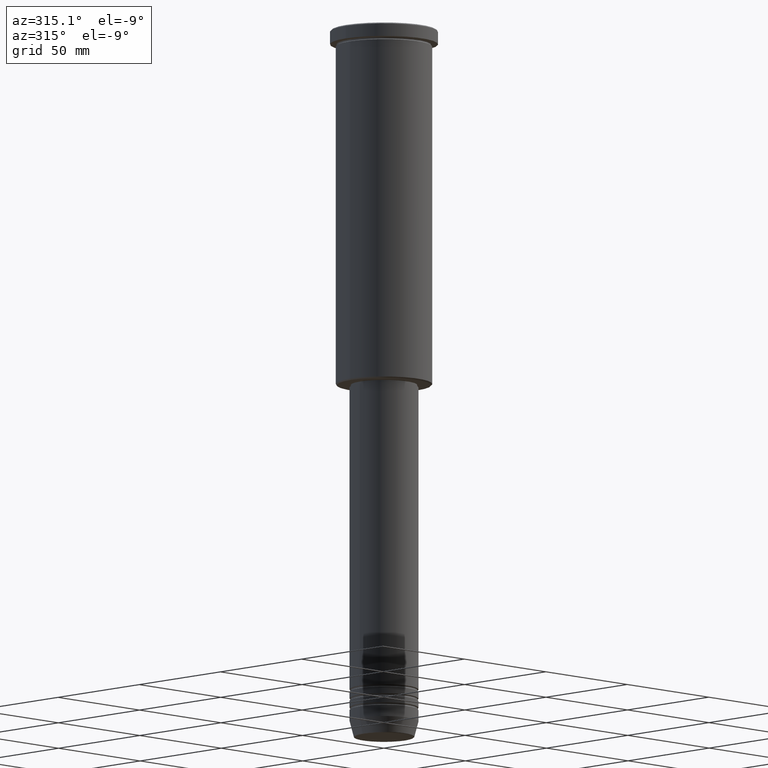
[diagram: clean part render]
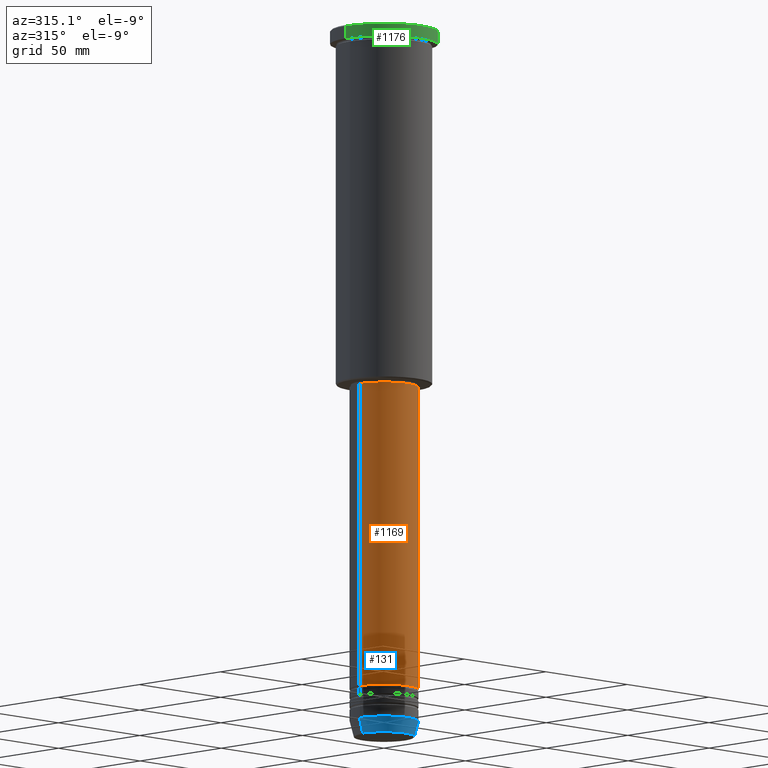
[diagram: same view with three faces highlighted in distinct colors, each labeled with its STEP entity id]
A machine part, auxiliary view with three faces highlighted in distinct colors.
Their STEP definitions:

[orange] entity #1169 — the highlighted cylindrical surface (edge-blend (fillet) strip) has radius 15 mm, axis along (-0, -0, 1).
#53 = EDGE_CURVE ( 'NONE', #565, #350, #1059, .T. ) ;
#72 = VECTOR ( 'NONE', #538, 1000.000000000000000 ) ;
#126 = AXIS2_PLACEMENT_3D ( 'NONE', #443, #817, #698 ) ;
#172 = CARTESIAN_POINT ( 'NONE',  ( 15.00000000000000000, 0.000000000000000000, -156.9999999999999147 ) ) ;
#208 = DIRECTION ( 'NONE',  ( -0.000000000000000000, -0.000000000000000000, 1.000000000000000000 ) ) ;
#225 = ORIENTED_EDGE ( 'NONE', *, *, #695, .F. ) ;
#231 = EDGE_CURVE ( 'NONE', #565, #862, #285, .T. ) ;
#243 = VECTOR ( 'NONE', #739, 1000.000000000000000 ) ;
#285 = LINE ( 'NONE', #368, #243 ) ;
#308 = CARTESIAN_POINT ( 'NONE',  ( -15.00000000000000000, 1.836970198721029589E-15, -289.9999999999999432 ) ) ;
#343 = LINE ( 'NONE', #909, #72 ) ;
#350 = VERTEX_POINT ( 'NONE', #376 ) ;
#368 = CARTESIAN_POINT ( 'NONE',  ( -15.00000000000000000, 1.836970198721029589E-15, 0.000000000000000000 ) ) ;
#374 = CARTESIAN_POINT ( 'NONE',  ( 0.000000000000000000, 0.000000000000000000, -156.9999999999999147 ) ) ;
#376 = CARTESIAN_POINT ( 'NONE',  ( 15.00000000000000000, 0.000000000000000000, -289.9999999999999432 ) ) ;
#443 = CARTESIAN_POINT ( 'NONE',  ( 0.000000000000000000, 0.000000000000000000, -289.9999999999999432 ) ) ;
#532 = AXIS2_PLACEMENT_3D ( 'NONE', #374, #208, #1116 ) ;
#538 = DIRECTION ( 'NONE',  ( -0.000000000000000000, -0.000000000000000000, 1.000000000000000000 ) ) ;
#565 = VERTEX_POINT ( 'NONE', #308 ) ;
#594 = AXIS2_PLACEMENT_3D ( 'NONE', #1075, #1172, #616 ) ;
#616 = DIRECTION ( 'NONE',  ( 1.000000000000000000, 0.000000000000000000, 0.000000000000000000 ) ) ;
#628 = ORIENTED_EDGE ( 'NONE', *, *, #53, .T. ) ;
#695 = EDGE_CURVE ( 'NONE', #862, #871, #992, .T. ) ;
#698 = DIRECTION ( 'NONE',  ( 1.000000000000000000, 0.000000000000000000, 0.000000000000000000 ) ) ;
#739 = DIRECTION ( 'NONE',  ( -0.000000000000000000, -0.000000000000000000, 1.000000000000000000 ) ) ;
#758 = EDGE_LOOP ( 'NONE', ( #936, #628, #966, #225 ) ) ;
#817 = DIRECTION ( 'NONE',  ( -0.000000000000000000, -0.000000000000000000, 1.000000000000000000 ) ) ;
#847 = CARTESIAN_POINT ( 'NONE',  ( -15.00000000000000000, 1.836970198721029589E-15, -156.9999999999999147 ) ) ;
#862 = VERTEX_POINT ( 'NONE', #847 ) ;
#871 = VERTEX_POINT ( 'NONE', #172 ) ;
#909 = CARTESIAN_POINT ( 'NONE',  ( 15.00000000000000000, 0.000000000000000000, 0.000000000000000000 ) ) ;
#936 = ORIENTED_EDGE ( 'NONE', *, *, #231, .F. ) ;
#966 = ORIENTED_EDGE ( 'NONE', *, *, #985, .T. ) ;
#985 = EDGE_CURVE ( 'NONE', #350, #871, #343, .T. ) ;
#987 = CYLINDRICAL_SURFACE ( 'NONE', #594, 15.00000000000000000 ) ;
#992 = CIRCLE ( 'NONE', #532, 15.00000000000000000 ) ;
#1059 = CIRCLE ( 'NONE', #126, 15.00000000000000000 ) ;
#1075 = CARTESIAN_POINT ( 'NONE',  ( 0.000000000000000000, 0.000000000000000000, 0.000000000000000000 ) ) ;
#1116 = DIRECTION ( 'NONE',  ( 1.000000000000000000, 0.000000000000000000, 0.000000000000000000 ) ) ;
#1164 = FACE_OUTER_BOUND ( 'NONE', #758, .T. ) ;
#1169 = ADVANCED_FACE ( 'NONE', ( #1164 ), #987, .T. ) ;
#1172 = DIRECTION ( 'NONE',  ( -0.000000000000000000, -0.000000000000000000, 1.000000000000000000 ) ) ;

[blue] entity #131 — the highlighted conical surface has half-angle 15 deg.
#45 = CIRCLE ( 'NONE', #286, 13.22365507213718772 ) ;
#106 = CARTESIAN_POINT ( 'NONE',  ( 0.000000000000000000, 0.000000000000000000, -310.6294095225513274 ) ) ;
#131 = ADVANCED_FACE ( 'NONE', ( #636 ), #812, .T. ) ;
#145 = EDGE_CURVE ( 'NONE', #1143, #491, #731, .T. ) ;
#176 = DIRECTION ( 'NONE',  ( -0.000000000000000000, -0.000000000000000000, 1.000000000000000000 ) ) ;
#197 = CARTESIAN_POINT ( 'NONE',  ( 0.000000000000000000, 0.000000000000000000, -304.0000000000000000 ) ) ;
#217 = AXIS2_PLACEMENT_3D ( 'NONE', #197, #176, #550 ) ;
#232 = LINE ( 'NONE', #506, #856 ) ;
#275 = CARTESIAN_POINT ( 'NONE',  ( 0.000000000000000000, 0.000000000000000000, -304.0000000000000000 ) ) ;
#286 = AXIS2_PLACEMENT_3D ( 'NONE', #106, #1181, #645 ) ;
#294 = VECTOR ( 'NONE', #307, 1000.000000000000000 ) ;
#307 = DIRECTION ( 'NONE',  ( 0.2588190451025213501, 0.000000000000000000, 0.9659258262890680902 ) ) ;
#347 = EDGE_CURVE ( 'NONE', #503, #451, #45, .T. ) ;
#366 = CARTESIAN_POINT ( 'NONE',  ( -13.22365507213718772, 1.728200442216588386E-15, -310.6294095225513274 ) ) ;
#382 = CARTESIAN_POINT ( 'NONE',  ( 13.22365507213718772, 0.000000000000000000, -310.6294095225513274 ) ) ;
#429 = CARTESIAN_POINT ( 'NONE',  ( -15.00000000000000000, 1.836970198721029589E-15, -304.0000000000000000 ) ) ;
#451 = VERTEX_POINT ( 'NONE', #382 ) ;
#453 = ORIENTED_EDGE ( 'NONE', *, *, #145, .F. ) ;
#482 = EDGE_CURVE ( 'NONE', #451, #491, #595, .T. ) ;
#491 = VERTEX_POINT ( 'NONE', #678 ) ;
#496 = CARTESIAN_POINT ( 'NONE',  ( 15.00000000000000000, 0.000000000000000000, -304.0000000000000000 ) ) ;
#503 = VERTEX_POINT ( 'NONE', #366 ) ;
#506 = CARTESIAN_POINT ( 'NONE',  ( -15.00000000000000000, 1.836970198721029589E-15, -304.0000000000000000 ) ) ;
#509 = ORIENTED_EDGE ( 'NONE', *, *, #482, .T. ) ;
#550 = DIRECTION ( 'NONE',  ( 1.000000000000000000, 0.000000000000000000, 0.000000000000000000 ) ) ;
#595 = LINE ( 'NONE', #496, #294 ) ;
#600 = ORIENTED_EDGE ( 'NONE', *, *, #1023, .F. ) ;
#636 = FACE_OUTER_BOUND ( 'NONE', #965, .T. ) ;
#645 = DIRECTION ( 'NONE',  ( 1.000000000000000000, 0.000000000000000000, 0.000000000000000000 ) ) ;
#678 = CARTESIAN_POINT ( 'NONE',  ( 15.00000000000000000, 0.000000000000000000, -304.0000000000000000 ) ) ;
#731 = CIRCLE ( 'NONE', #217, 15.00000000000000000 ) ;
#812 = CONICAL_SURFACE ( 'NONE', #922, 15.00000000000000000, 0.2617993877991500740 ) ;
#838 = DIRECTION ( 'NONE',  ( -0.000000000000000000, -0.000000000000000000, 1.000000000000000000 ) ) ;
#856 = VECTOR ( 'NONE', #1133, 1000.000000000000000 ) ;
#922 = AXIS2_PLACEMENT_3D ( 'NONE', #275, #838, #1121 ) ;
#965 = EDGE_LOOP ( 'NONE', ( #600, #978, #509, #453 ) ) ;
#978 = ORIENTED_EDGE ( 'NONE', *, *, #347, .T. ) ;
#1023 = EDGE_CURVE ( 'NONE', #503, #1143, #232, .T. ) ;
#1121 = DIRECTION ( 'NONE',  ( 1.000000000000000000, 0.000000000000000000, 0.000000000000000000 ) ) ;
#1133 = DIRECTION ( 'NONE',  ( -0.2588190451025213501, 3.169619151431772337E-17, 0.9659258262890680902 ) ) ;
#1143 = VERTEX_POINT ( 'NONE', #429 ) ;
#1181 = DIRECTION ( 'NONE',  ( -0.000000000000000000, -0.000000000000000000, 1.000000000000000000 ) ) ;

[green] entity #1176 — the highlighted cylindrical surface (partial cylindrical patch) has radius 23.5 mm, axis along (-0, -0, 1).
#26 = VECTOR ( 'NONE', #32, 1000.000000000000000 ) ;
#31 = DIRECTION ( 'NONE',  ( 0.000000000000000000, 0.000000000000000000, -1.000000000000000000 ) ) ;
#32 = DIRECTION ( 'NONE',  ( -0.000000000000000000, -0.000000000000000000, 1.000000000000000000 ) ) ;
#52 = VERTEX_POINT ( 'NONE', #74 ) ;
#56 = CYLINDRICAL_SURFACE ( 'NONE', #505, 23.50000000000000000 ) ;
#74 = CARTESIAN_POINT ( 'NONE',  ( -23.50000000000000000, 2.877919977996280320E-15, -0.4999999999999726885 ) ) ;
#209 = LINE ( 'NONE', #940, #26 ) ;
#214 = CIRCLE ( 'NONE', #421, 23.50000000000000000 ) ;
#234 = ORIENTED_EDGE ( 'NONE', *, *, #508, .T. ) ;
#334 = VECTOR ( 'NONE', #948, 1000.000000000000000 ) ;
#353 = DIRECTION ( 'NONE',  ( 1.000000000000000000, 0.000000000000000000, 0.000000000000000000 ) ) ;
#401 = EDGE_LOOP ( 'NONE', ( #1127, #962, #234, #893 ) ) ;
#421 = AXIS2_PLACEMENT_3D ( 'NONE', #1099, #459, #832 ) ;
#448 = CARTESIAN_POINT ( 'NONE',  ( 0.000000000000000000, 0.000000000000000000, 0.000000000000000000 ) ) ;
#459 = DIRECTION ( 'NONE',  ( -0.000000000000000000, -0.000000000000000000, 1.000000000000000000 ) ) ;
#465 = EDGE_CURVE ( 'NONE', #1104, #52, #1024, .T. ) ;
#501 = VERTEX_POINT ( 'NONE', #1140 ) ;
#505 = AXIS2_PLACEMENT_3D ( 'NONE', #448, #819, #1178 ) ;
#508 = EDGE_CURVE ( 'NONE', #804, #1104, #209, .T. ) ;
#536 = CARTESIAN_POINT ( 'NONE',  ( -23.50000000000000000, 2.877919977996280320E-15, 0.000000000000000000 ) ) ;
#632 = CARTESIAN_POINT ( 'NONE',  ( 0.000000000000000000, 0.000000000000000000, -0.4999999999999726885 ) ) ;
#635 = EDGE_CURVE ( 'NONE', #501, #804, #214, .T. ) ;
#746 = CARTESIAN_POINT ( 'NONE',  ( 23.50000000000000000, 0.000000000000000000, -5.999999999999993783 ) ) ;
#804 = VERTEX_POINT ( 'NONE', #746 ) ;
#819 = DIRECTION ( 'NONE',  ( -0.000000000000000000, -0.000000000000000000, 1.000000000000000000 ) ) ;
#832 = DIRECTION ( 'NONE',  ( 1.000000000000000000, 0.000000000000000000, 0.000000000000000000 ) ) ;
#893 = ORIENTED_EDGE ( 'NONE', *, *, #465, .T. ) ;
#896 = CARTESIAN_POINT ( 'NONE',  ( 23.50000000000000000, 0.000000000000000000, -0.4999999999999726885 ) ) ;
#919 = AXIS2_PLACEMENT_3D ( 'NONE', #632, #31, #353 ) ;
#940 = CARTESIAN_POINT ( 'NONE',  ( 23.50000000000000000, 0.000000000000000000, 0.000000000000000000 ) ) ;
#948 = DIRECTION ( 'NONE',  ( -0.000000000000000000, -0.000000000000000000, 1.000000000000000000 ) ) ;
#962 = ORIENTED_EDGE ( 'NONE', *, *, #635, .T. ) ;
#982 = FACE_OUTER_BOUND ( 'NONE', #401, .T. ) ;
#1024 = CIRCLE ( 'NONE', #919, 23.50000000000000000 ) ;
#1082 = EDGE_CURVE ( 'NONE', #501, #52, #1171, .T. ) ;
#1099 = CARTESIAN_POINT ( 'NONE',  ( 0.000000000000000000, 0.000000000000000000, -5.999999999999993783 ) ) ;
#1104 = VERTEX_POINT ( 'NONE', #896 ) ;
#1127 = ORIENTED_EDGE ( 'NONE', *, *, #1082, .F. ) ;
#1140 = CARTESIAN_POINT ( 'NONE',  ( -23.50000000000000000, 2.877919977996280320E-15, -5.999999999999993783 ) ) ;
#1171 = LINE ( 'NONE', #536, #334 ) ;
#1176 = ADVANCED_FACE ( 'NONE', ( #982 ), #56, .T. ) ;
#1178 = DIRECTION ( 'NONE',  ( 1.000000000000000000, 0.000000000000000000, 0.000000000000000000 ) ) ;